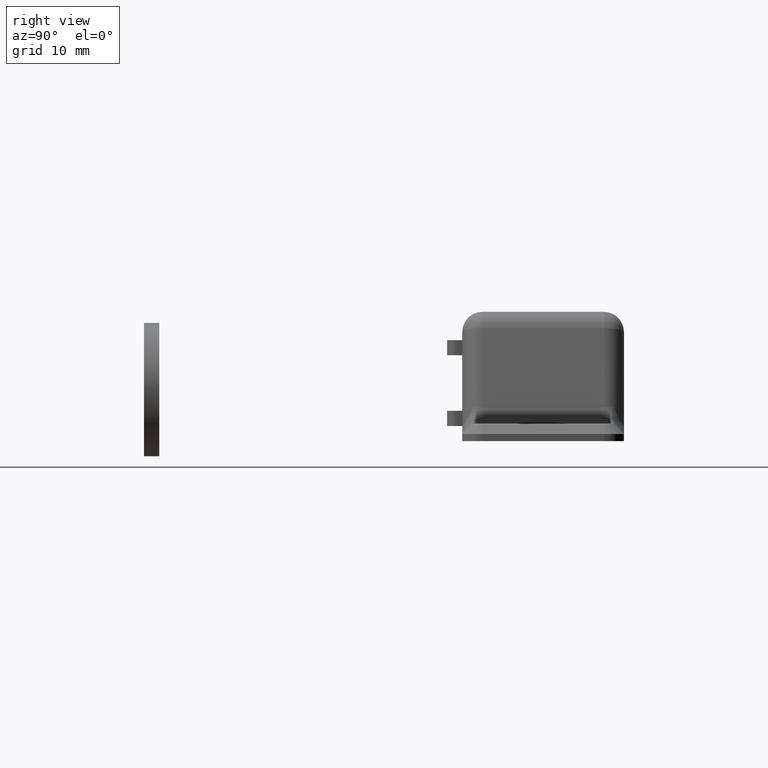
[diagram: clean part render]
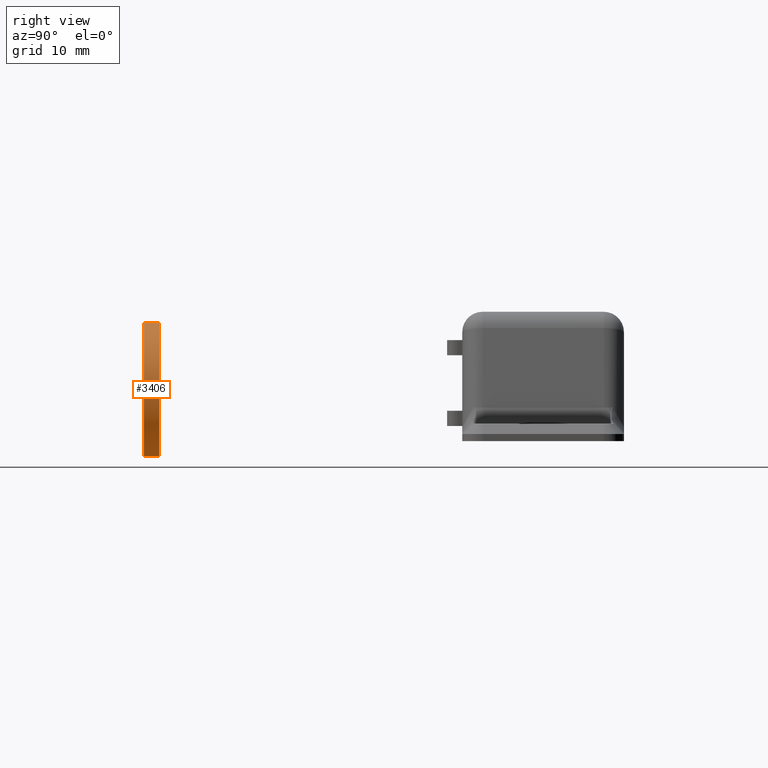
[diagram: same view with one face highlighted and labeled with its STEP entity id]
A machine part, right view. The second image highlights one B-rep face of the part: STEP entity #3406.
In plain terms, the highlighted cylindrical surface (partial cylindrical patch) has radius 6.6 mm, axis along (-0, 1, 0).
Its self-contained STEP definition (entity closure, byte-faithful):
#423=FACE_OUTER_BOUND('',#631,.T.);
#631=EDGE_LOOP('',(#3137,#3138,#3139,#3140));
#971=LINE('',#6402,#1267);
#972=LINE('',#6408,#1268);
#1267=VECTOR('',#4675,1.5);
#1268=VECTOR('',#4682,1.5);
#1387=CIRCLE('',#3737,6.6);
#1388=CIRCLE('',#3738,6.6);
#1695=VERTEX_POINT('',#6398);
#1696=VERTEX_POINT('',#6400);
#1697=VERTEX_POINT('',#6404);
#1698=VERTEX_POINT('',#6406);
#2179=EDGE_CURVE('',#1695,#1696,#971,.T.);
#2180=EDGE_CURVE('',#1697,#1695,#1387,.T.);
#2181=EDGE_CURVE('',#1698,#1696,#1388,.T.);
#2182=EDGE_CURVE('',#1697,#1698,#972,.T.);
#3137=ORIENTED_EDGE('',*,*,#2180,.T.);
#3138=ORIENTED_EDGE('',*,*,#2179,.T.);
#3139=ORIENTED_EDGE('',*,*,#2181,.F.);
#3140=ORIENTED_EDGE('',*,*,#2182,.F.);
#3216=CYLINDRICAL_SURFACE('',#3736,6.6);
#3406=ADVANCED_FACE('',(#423),#3216,.T.);
#3736=AXIS2_PLACEMENT_3D('',#6403,#4676,#4677);
#3737=AXIS2_PLACEMENT_3D('',#6405,#4678,#4679);
#3738=AXIS2_PLACEMENT_3D('',#6407,#4680,#4681);
#4675=DIRECTION('',(0.,0.,1.));
#4676=DIRECTION('center_axis',(0.,0.,1.));
#4677=DIRECTION('ref_axis',(0.,-1.,0.));
#4678=DIRECTION('center_axis',(0.,0.,1.));
#4679=DIRECTION('ref_axis',(0.,-1.,0.));
#4680=DIRECTION('center_axis',(0.,0.,1.));
#4681=DIRECTION('ref_axis',(0.,-1.,0.));
#4682=DIRECTION('',(0.,0.,1.));
#6398=CARTESIAN_POINT('',(38.,6.6,0.));
#6400=CARTESIAN_POINT('',(38.,6.6,1.5));
#6402=CARTESIAN_POINT('',(38.,6.6,0.));
#6403=CARTESIAN_POINT('Origin',(38.,0.,0.));
#6404=CARTESIAN_POINT('',(38.,-6.6,0.));
#6405=CARTESIAN_POINT('Origin',(38.,0.,0.));
#6406=CARTESIAN_POINT('',(38.,-6.6,1.5));
#6407=CARTESIAN_POINT('Origin',(38.,0.,1.5));
#6408=CARTESIAN_POINT('',(38.,-6.6,0.));